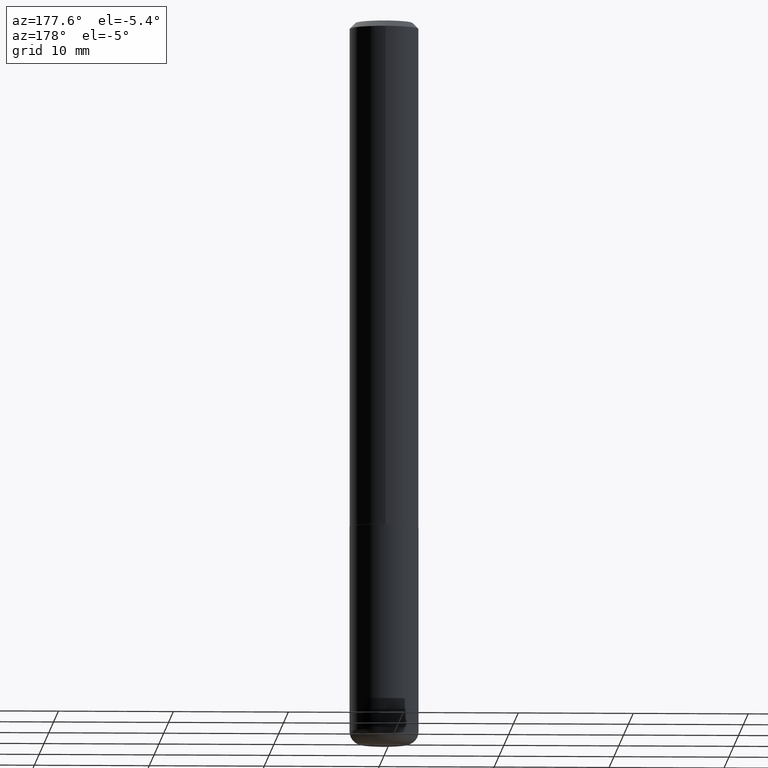
[diagram: clean part render]
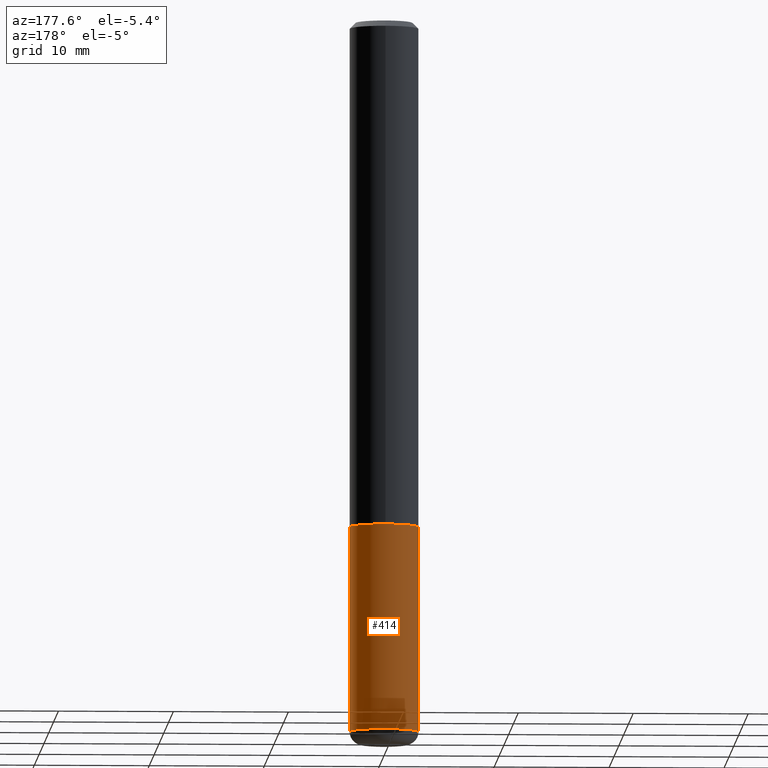
[diagram: same view with one face highlighted and labeled with its STEP entity id]
A machine part, auxiliary view. The second image highlights one B-rep face of the part: STEP entity #414.
In plain terms, the highlighted cylindrical surface (edge-blend (fillet) strip) has radius 2.9997 mm, axis along (-0, 0, 1).
Its self-contained STEP definition (entity closure, byte-faithful):
#9 = CARTESIAN_POINT ( 'NONE',  ( 0.1181000000000000383, -6.872981015512730918E-15, -1.732300000000000173 ) ) ;
#11 = CARTESIAN_POINT ( 'NONE',  ( 0.1180999999999999273, -9.327841544853345478E-15, -2.435400000000000453 ) ) ;
#19 = VECTOR ( 'NONE', #417, 39.37007874015748143 ) ;
#30 = LINE ( 'NONE', #286, #19 ) ;
#39 = DIRECTION ( 'NONE',  ( -2.445468806185136877E-29, 3.491481338843145188E-15, 1.000000000000000000 ) ) ;
#40 = CARTESIAN_POINT ( 'NONE',  ( 0.000000000000000000, 0.000000000000000000, 0.000000000000000000 ) ) ;
#66 = DIRECTION ( 'NONE',  ( 1.000000000000000000, -6.982962677686270655E-15, 0.000000000000000000 ) ) ;
#70 = EDGE_CURVE ( 'NONE', #325, #315, #30, .T. ) ;
#71 = FACE_OUTER_BOUND ( 'NONE', #250, .T. ) ;
#81 = CIRCLE ( 'NONE', #276, 0.1181000000000000383 ) ;
#114 = EDGE_CURVE ( 'NONE', #128, #325, #136, .T. ) ;
#119 = ORIENTED_EDGE ( 'NONE', *, *, #333, .F. ) ;
#127 = CARTESIAN_POINT ( 'NONE',  ( 5.955694730583282706E-29, -8.503153652618598793E-15, -2.435400000000000453 ) ) ;
#128 = VERTEX_POINT ( 'NONE', #11 ) ;
#131 = DIRECTION ( 'NONE',  ( 1.000000000000000000, -6.982962677686270655E-15, 0.000000000000000000 ) ) ;
#136 = CIRCLE ( 'NONE', #317, 0.1181000000000000383 ) ;
#145 = ORIENTED_EDGE ( 'NONE', *, *, #114, .T. ) ;
#168 = LINE ( 'NONE', #266, #221 ) ;
#221 = VECTOR ( 'NONE', #39, 39.37007874015748143 ) ;
#231 = AXIS2_PLACEMENT_3D ( 'NONE', #40, #268, #295 ) ;
#250 = EDGE_LOOP ( 'NONE', ( #145, #360, #119, #263 ) ) ;
#263 = ORIENTED_EDGE ( 'NONE', *, *, #366, .F. ) ;
#266 = CARTESIAN_POINT ( 'NONE',  ( 0.1181000000000000383, -8.246878922347483612E-16, 5.758764772215001842E-30 ) ) ;
#268 = DIRECTION ( 'NONE',  ( -2.445468806185136597E-29, 3.491481338843145583E-15, 1.000000000000000000 ) ) ;
#276 = AXIS2_PLACEMENT_3D ( 'NONE', #291, #362, #131 ) ;
#286 = CARTESIAN_POINT ( 'NONE',  ( -0.1181000000000000383, 8.391509709326785915E-16, -5.809262341591045886E-30 ) ) ;
#291 = CARTESIAN_POINT ( 'NONE',  ( 4.236285612954512953E-29, -6.048293123277982656E-15, -1.732300000000000173 ) ) ;
#295 = DIRECTION ( 'NONE',  ( 1.000000000000000000, -6.982962677686266711E-15, 4.876176775795935793E-29 ) ) ;
#315 = VERTEX_POINT ( 'NONE', #418 ) ;
#317 = AXIS2_PLACEMENT_3D ( 'NONE', #127, #359, #66 ) ;
#325 = VERTEX_POINT ( 'NONE', #326 ) ;
#326 = CARTESIAN_POINT ( 'NONE',  ( -0.1180999999999999273, -7.664002681685919807E-15, -2.435400000000000453 ) ) ;
#331 = CYLINDRICAL_SURFACE ( 'NONE', #231, 0.1181000000000000383 ) ;
#333 = EDGE_CURVE ( 'NONE', #377, #315, #81, .T. ) ;
#359 = DIRECTION ( 'NONE',  ( -2.445468806185136597E-29, 3.491481338843145583E-15, 1.000000000000000000 ) ) ;
#360 = ORIENTED_EDGE ( 'NONE', *, *, #70, .T. ) ;
#362 = DIRECTION ( 'NONE',  ( -2.445468806185136597E-29, 3.491481338843145583E-15, 1.000000000000000000 ) ) ;
#366 = EDGE_CURVE ( 'NONE', #128, #377, #168, .T. ) ;
#377 = VERTEX_POINT ( 'NONE', #9 ) ;
#414 = ADVANCED_FACE ( 'NONE', ( #71 ), #331, .T. ) ;
#417 = DIRECTION ( 'NONE',  ( -2.445468806185136877E-29, 3.491481338843145188E-15, 1.000000000000000000 ) ) ;
#418 = CARTESIAN_POINT ( 'NONE',  ( -0.1181000000000000383, -6.436572417015612133E-15, -1.732300000000000173 ) ) ;